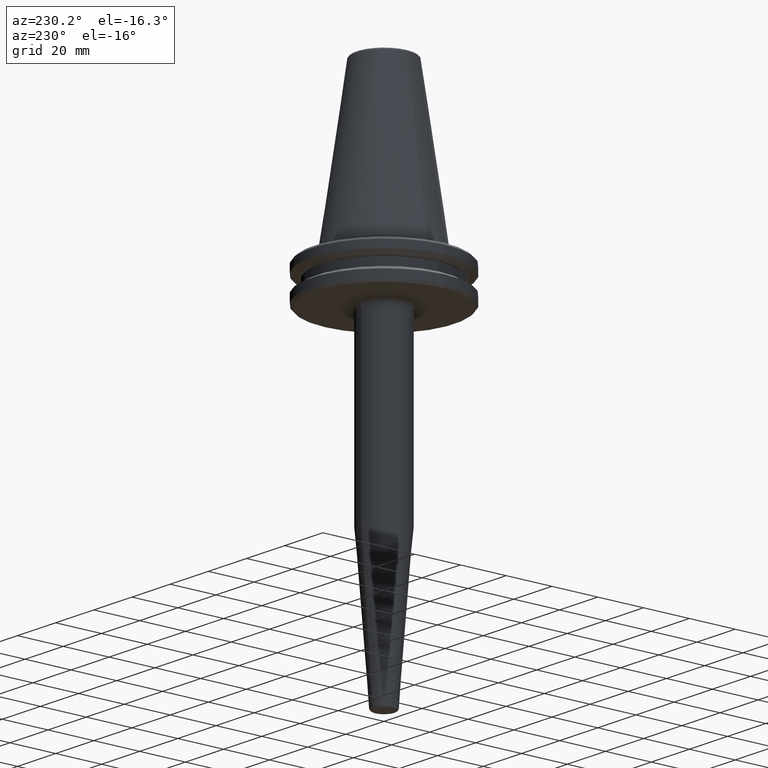
[diagram: clean part render]
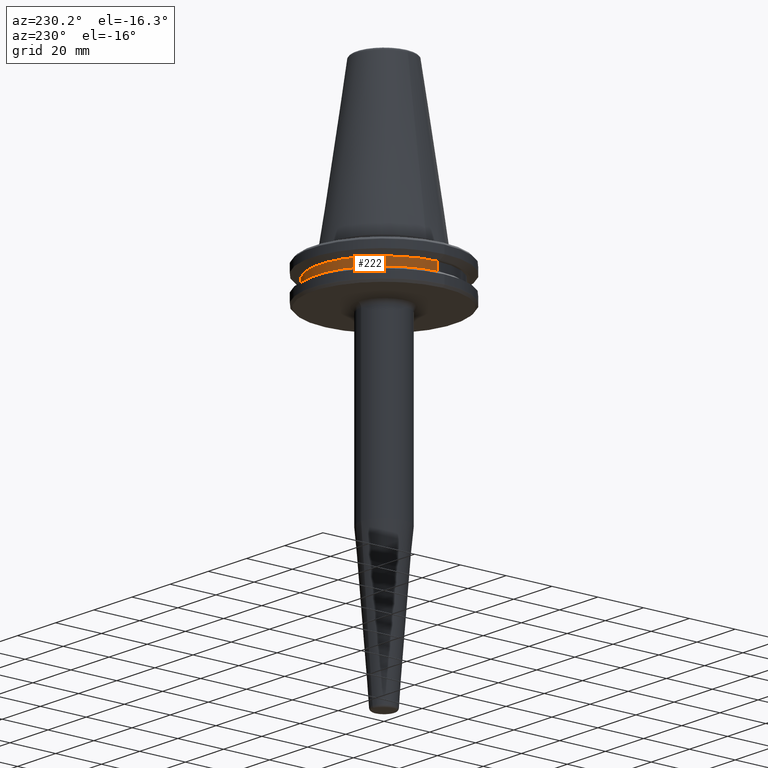
[diagram: same view with one face highlighted and labeled with its STEP entity id]
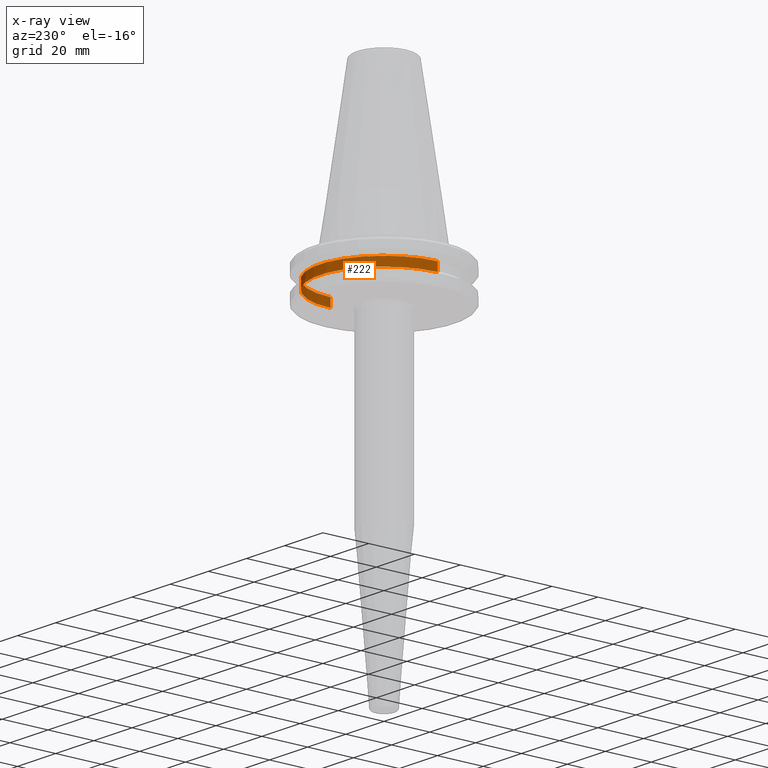
[diagram: x-ray of the same camera — body ghosted, the highlighted face saturated]
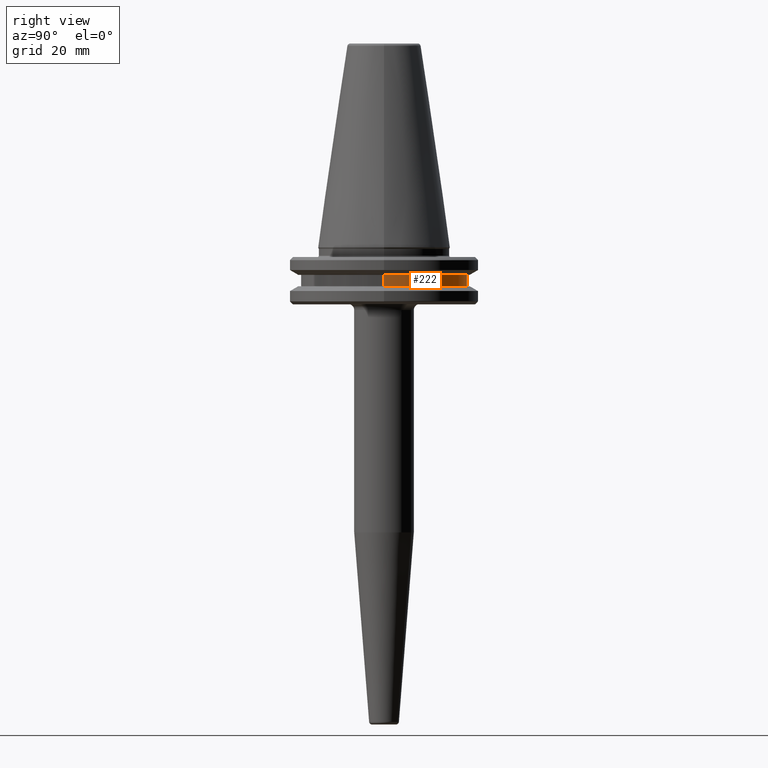
[diagram: same view with one face highlighted and labeled with its STEP entity id]
A machine part, auxiliary view. The second image highlights one B-rep face of the part: STEP entity #222.
The next image is the same camera in x-ray: the body ghosted, the highlighted face saturated — about 11% of this face is hidden behind the body in this view.
A second angle (right view) of the same face is appended — the face is thin or edge-on in the first view.
In plain terms, the highlighted cylindrical surface (partial cylindrical patch) has radius 28 mm, axis along (-0, -0, 1).
Its self-contained STEP definition (entity closure, byte-faithful):
#88 = CARTESIAN_POINT ( 'NONE',  ( 28.00000000000000000, 0.0000000000000000000, -9.199999999999999300 ) ) ;
#116 = DIRECTION ( 'NONE',  ( -0.0000000000000000000, -0.0000000000000000000, 1.000000000000000000 ) ) ;
#159 = EDGE_CURVE ( 'NONE', #513, #942, #336, .T. ) ;
#187 = EDGE_LOOP ( 'NONE', ( #1233, #1245, #572, #460 ) ) ;
#213 = CIRCLE ( 'NONE', #468, 28.00000000000000000 ) ;
#222 = ADVANCED_FACE ( 'NONE', ( #710 ), #950, .T. ) ;
#270 = VECTOR ( 'NONE', #701, 1000.000000000000000 ) ;
#313 = DIRECTION ( 'NONE',  ( -0.0000000000000000000, -0.0000000000000000000, 1.000000000000000000 ) ) ;
#336 = LINE ( 'NONE', #1069, #270 ) ;
#346 = CARTESIAN_POINT ( 'NONE',  ( 28.00000000000000000, 0.0000000000000000000, -13.00000000000001100 ) ) ;
#407 = DIRECTION ( 'NONE',  ( 1.000000000000000000, 0.0000000000000000000, 0.0000000000000000000 ) ) ;
#419 = VERTEX_POINT ( 'NONE', #346 ) ;
#460 = ORIENTED_EDGE ( 'NONE', *, *, #548, .F. ) ;
#468 = AXIS2_PLACEMENT_3D ( 'NONE', #556, #1236, #650 ) ;
#480 = AXIS2_PLACEMENT_3D ( 'NONE', #692, #116, #787 ) ;
#505 = EDGE_CURVE ( 'NONE', #419, #513, #971, .T. ) ;
#513 = VERTEX_POINT ( 'NONE', #664 ) ;
#548 = EDGE_CURVE ( 'NONE', #419, #982, #937, .T. ) ;
#556 = CARTESIAN_POINT ( 'NONE',  ( 0.0000000000000000000, 0.0000000000000000000, -9.199999999999999300 ) ) ;
#572 = ORIENTED_EDGE ( 'NONE', *, *, #913, .F. ) ;
#615 = CARTESIAN_POINT ( 'NONE',  ( 28.00000000000000000, 0.0000000000000000000, 113.5216080541959500 ) ) ;
#650 = DIRECTION ( 'NONE',  ( 1.000000000000000000, 0.0000000000000000000, 0.0000000000000000000 ) ) ;
#664 = CARTESIAN_POINT ( 'NONE',  ( -28.00000000000000000, 3.429011037612589300E-015, -13.00000000000001100 ) ) ;
#690 = CARTESIAN_POINT ( 'NONE',  ( 0.0000000000000000000, 0.0000000000000000000, 113.5216080541959500 ) ) ;
#692 = CARTESIAN_POINT ( 'NONE',  ( 0.0000000000000000000, 0.0000000000000000000, -13.00000000000001100 ) ) ;
#701 = DIRECTION ( 'NONE',  ( -0.0000000000000000000, -0.0000000000000000000, 1.000000000000000000 ) ) ;
#710 = FACE_OUTER_BOUND ( 'NONE', #187, .T. ) ;
#785 = DIRECTION ( 'NONE',  ( -0.0000000000000000000, -0.0000000000000000000, 1.000000000000000000 ) ) ;
#787 = DIRECTION ( 'NONE',  ( 1.000000000000000000, 0.0000000000000000000, 0.0000000000000000000 ) ) ;
#913 = EDGE_CURVE ( 'NONE', #982, #942, #213, .T. ) ;
#937 = LINE ( 'NONE', #615, #1135 ) ;
#942 = VERTEX_POINT ( 'NONE', #1027 ) ;
#950 = CYLINDRICAL_SURFACE ( 'NONE', #1228, 28.00000000000000000 ) ;
#971 = CIRCLE ( 'NONE', #480, 28.00000000000000000 ) ;
#982 = VERTEX_POINT ( 'NONE', #88 ) ;
#1027 = CARTESIAN_POINT ( 'NONE',  ( -28.00000000000000000, 3.429011037612589300E-015, -9.199999999999999300 ) ) ;
#1069 = CARTESIAN_POINT ( 'NONE',  ( -28.00000000000000000, 3.429011037612589300E-015, 113.5216080541959500 ) ) ;
#1135 = VECTOR ( 'NONE', #313, 1000.000000000000000 ) ;
#1228 = AXIS2_PLACEMENT_3D ( 'NONE', #690, #785, #407 ) ;
#1233 = ORIENTED_EDGE ( 'NONE', *, *, #505, .T. ) ;
#1236 = DIRECTION ( 'NONE',  ( -0.0000000000000000000, -0.0000000000000000000, 1.000000000000000000 ) ) ;
#1245 = ORIENTED_EDGE ( 'NONE', *, *, #159, .T. ) ;